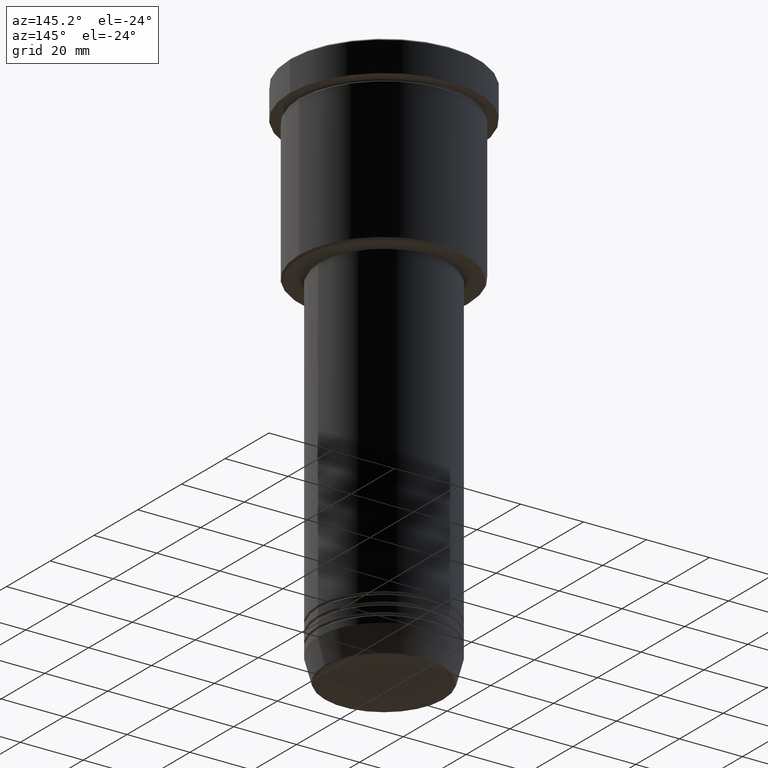
[diagram: clean part render]
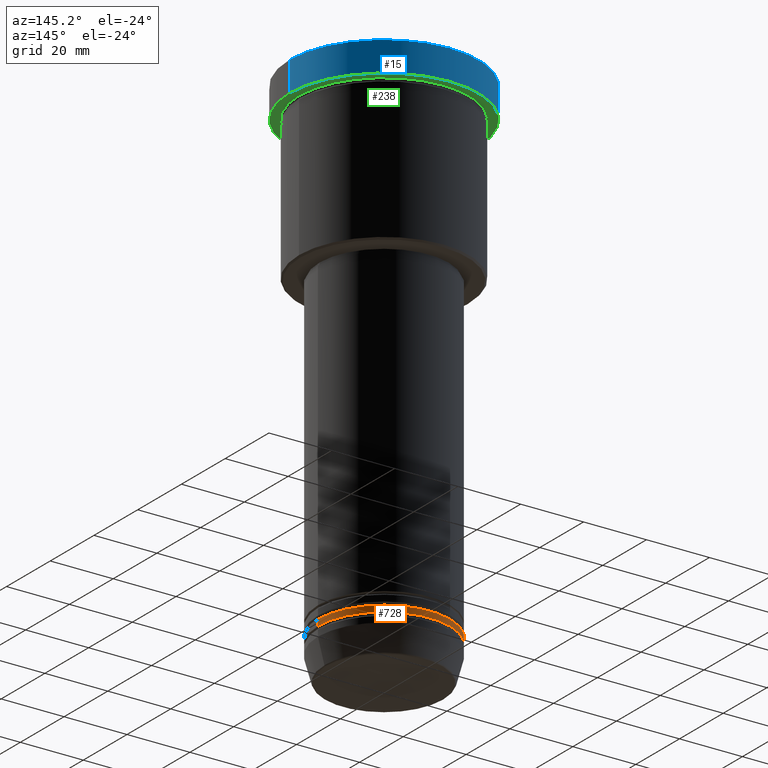
[diagram: same view with three faces highlighted in distinct colors, each labeled with its STEP entity id]
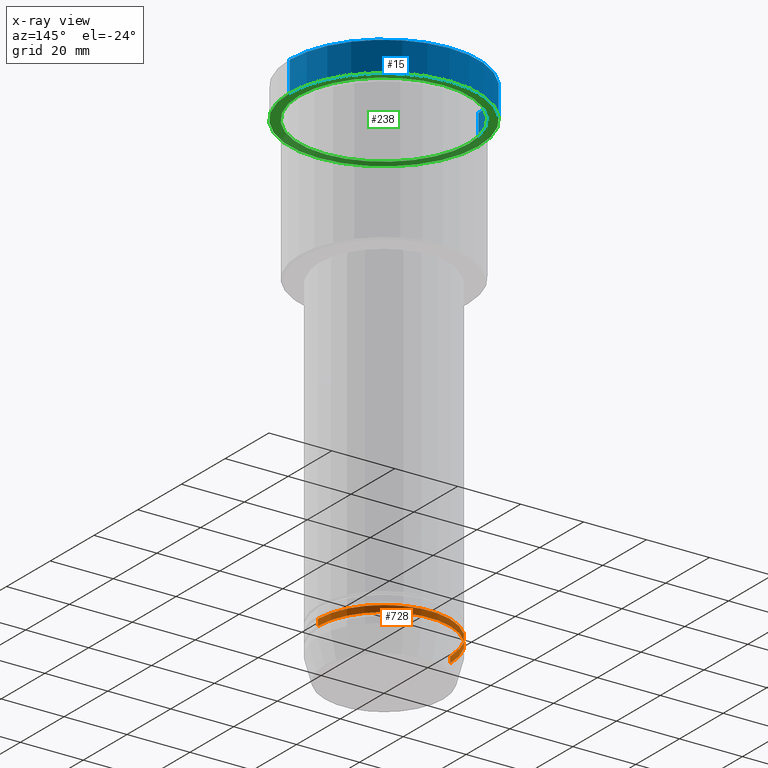
[diagram: x-ray of the same camera — body ghosted, the three highlighted faces saturated]
A machine part, auxiliary view with three faces highlighted in distinct colors.
The next image is the same camera in x-ray (body ghosted, the three faces saturated) — at least one of them is partly hidden behind the body in this view.
Their STEP definitions:

[orange] entity #728 — the highlighted cylindrical surface (partial cylindrical patch) has radius 21 mm, axis along (-0, -0, 1).
#61 = EDGE_CURVE ( 'NONE', #165, #794, #812, .T. ) ;
#91 = CARTESIAN_POINT ( 'NONE',  ( -21.00000000000000000, 2.571758278209441661E-15, -157.9999999999999716 ) ) ;
#96 = EDGE_CURVE ( 'NONE', #794, #387, #546, .T. ) ;
#141 = CARTESIAN_POINT ( 'NONE',  ( 0.000000000000000000, 0.000000000000000000, 0.000000000000000000 ) ) ;
#153 = DIRECTION ( 'NONE',  ( -0.000000000000000000, -0.000000000000000000, 1.000000000000000000 ) ) ;
#165 = VERTEX_POINT ( 'NONE', #1125 ) ;
#185 = VERTEX_POINT ( 'NONE', #948 ) ;
#259 = CARTESIAN_POINT ( 'NONE',  ( -21.00000000000000000, 2.571758278209441661E-15, 0.000000000000000000 ) ) ;
#299 = EDGE_LOOP ( 'NONE', ( #913, #898, #576, #1020 ) ) ;
#315 = CARTESIAN_POINT ( 'NONE',  ( 0.000000000000000000, 0.000000000000000000, -157.9999999999999716 ) ) ;
#348 = DIRECTION ( 'NONE',  ( 1.000000000000000000, 0.000000000000000000, 0.000000000000000000 ) ) ;
#387 = VERTEX_POINT ( 'NONE', #91 ) ;
#428 = AXIS2_PLACEMENT_3D ( 'NONE', #964, #153, #348 ) ;
#431 = DIRECTION ( 'NONE',  ( -0.000000000000000000, -0.000000000000000000, 1.000000000000000000 ) ) ;
#469 = AXIS2_PLACEMENT_3D ( 'NONE', #141, #1144, #810 ) ;
#546 = CIRCLE ( 'NONE', #699, 21.00000000000000000 ) ;
#573 = VECTOR ( 'NONE', #431, 1000.000000000000000 ) ;
#576 = ORIENTED_EDGE ( 'NONE', *, *, #96, .F. ) ;
#597 = CYLINDRICAL_SURFACE ( 'NONE', #469, 21.00000000000000000 ) ;
#625 = LINE ( 'NONE', #259, #573 ) ;
#699 = AXIS2_PLACEMENT_3D ( 'NONE', #315, #865, #955 ) ;
#728 = ADVANCED_FACE ( 'NONE', ( #785 ), #597, .T. ) ;
#783 = CIRCLE ( 'NONE', #428, 21.00000000000000000 ) ;
#785 = FACE_OUTER_BOUND ( 'NONE', #299, .T. ) ;
#789 = EDGE_CURVE ( 'NONE', #165, #185, #783, .T. ) ;
#794 = VERTEX_POINT ( 'NONE', #881 ) ;
#810 = DIRECTION ( 'NONE',  ( 1.000000000000000000, 0.000000000000000000, 0.000000000000000000 ) ) ;
#812 = LINE ( 'NONE', #1174, #1076 ) ;
#865 = DIRECTION ( 'NONE',  ( -0.000000000000000000, -0.000000000000000000, 1.000000000000000000 ) ) ;
#881 = CARTESIAN_POINT ( 'NONE',  ( 21.00000000000000000, 0.000000000000000000, -157.9999999999999716 ) ) ;
#898 = ORIENTED_EDGE ( 'NONE', *, *, #1177, .T. ) ;
#913 = ORIENTED_EDGE ( 'NONE', *, *, #789, .T. ) ;
#948 = CARTESIAN_POINT ( 'NONE',  ( -21.00000000000000000, 2.571758278209441661E-15, -159.9999999999999716 ) ) ;
#955 = DIRECTION ( 'NONE',  ( 1.000000000000000000, 0.000000000000000000, 0.000000000000000000 ) ) ;
#964 = CARTESIAN_POINT ( 'NONE',  ( 0.000000000000000000, 0.000000000000000000, -159.9999999999999716 ) ) ;
#1020 = ORIENTED_EDGE ( 'NONE', *, *, #61, .F. ) ;
#1076 = VECTOR ( 'NONE', #1083, 1000.000000000000000 ) ;
#1083 = DIRECTION ( 'NONE',  ( -0.000000000000000000, -0.000000000000000000, 1.000000000000000000 ) ) ;
#1125 = CARTESIAN_POINT ( 'NONE',  ( 21.00000000000000000, 0.000000000000000000, -159.9999999999999716 ) ) ;
#1144 = DIRECTION ( 'NONE',  ( -0.000000000000000000, -0.000000000000000000, 1.000000000000000000 ) ) ;
#1174 = CARTESIAN_POINT ( 'NONE',  ( 21.00000000000000000, 0.000000000000000000, 0.000000000000000000 ) ) ;
#1177 = EDGE_CURVE ( 'NONE', #185, #387, #625, .T. ) ;

[blue] entity #15 — the highlighted cylindrical surface (partial cylindrical patch) has radius 30 mm, axis along (-0, -0, 1).
#15 = ADVANCED_FACE ( 'NONE', ( #919 ), #730, .T. ) ;
#39 = EDGE_CURVE ( 'NONE', #502, #555, #195, .T. ) ;
#59 = ORIENTED_EDGE ( 'NONE', *, *, #198, .T. ) ;
#109 = DIRECTION ( 'NONE',  ( 1.000000000000000000, 0.000000000000000000, 0.000000000000000000 ) ) ;
#122 = DIRECTION ( 'NONE',  ( -0.000000000000000000, -0.000000000000000000, 1.000000000000000000 ) ) ;
#195 = LINE ( 'NONE', #561, #1135 ) ;
#198 = EDGE_CURVE ( 'NONE', #436, #502, #850, .T. ) ;
#360 = VERTEX_POINT ( 'NONE', #828 ) ;
#361 = CARTESIAN_POINT ( 'NONE',  ( 0.000000000000000000, 0.000000000000000000, -0.5000000000000350830 ) ) ;
#436 = VERTEX_POINT ( 'NONE', #1088 ) ;
#466 = DIRECTION ( 'NONE',  ( -0.000000000000000000, -0.000000000000000000, 1.000000000000000000 ) ) ;
#495 = CARTESIAN_POINT ( 'NONE',  ( 0.000000000000000000, 0.000000000000000000, -9.999999999999992895 ) ) ;
#502 = VERTEX_POINT ( 'NONE', #1082 ) ;
#535 = ORIENTED_EDGE ( 'NONE', *, *, #39, .T. ) ;
#543 = AXIS2_PLACEMENT_3D ( 'NONE', #495, #586, #660 ) ;
#555 = VERTEX_POINT ( 'NONE', #670 ) ;
#561 = CARTESIAN_POINT ( 'NONE',  ( -30.00000000000000000, 3.673940397442059178E-15, 0.000000000000000000 ) ) ;
#572 = DIRECTION ( 'NONE',  ( 0.000000000000000000, 0.000000000000000000, -1.000000000000000000 ) ) ;
#586 = DIRECTION ( 'NONE',  ( -0.000000000000000000, -0.000000000000000000, 1.000000000000000000 ) ) ;
#642 = CIRCLE ( 'NONE', #701, 30.00000000000000000 ) ;
#653 = DIRECTION ( 'NONE',  ( -0.000000000000000000, -0.000000000000000000, 1.000000000000000000 ) ) ;
#660 = DIRECTION ( 'NONE',  ( 1.000000000000000000, 0.000000000000000000, 0.000000000000000000 ) ) ;
#670 = CARTESIAN_POINT ( 'NONE',  ( -30.00000000000000000, 3.673940397442059178E-15, -0.5000000000000350830 ) ) ;
#690 = ORIENTED_EDGE ( 'NONE', *, *, #985, .F. ) ;
#701 = AXIS2_PLACEMENT_3D ( 'NONE', #361, #572, #109 ) ;
#730 = CYLINDRICAL_SURFACE ( 'NONE', #1095, 30.00000000000000000 ) ;
#745 = ORIENTED_EDGE ( 'NONE', *, *, #930, .T. ) ;
#772 = CARTESIAN_POINT ( 'NONE',  ( 30.00000000000000000, 0.000000000000000000, 0.000000000000000000 ) ) ;
#823 = DIRECTION ( 'NONE',  ( 1.000000000000000000, 0.000000000000000000, 0.000000000000000000 ) ) ;
#828 = CARTESIAN_POINT ( 'NONE',  ( 30.00000000000000000, 0.000000000000000000, -0.5000000000000350830 ) ) ;
#831 = EDGE_LOOP ( 'NONE', ( #59, #535, #745, #690 ) ) ;
#850 = CIRCLE ( 'NONE', #543, 30.00000000000000000 ) ;
#919 = FACE_OUTER_BOUND ( 'NONE', #831, .T. ) ;
#930 = EDGE_CURVE ( 'NONE', #555, #360, #642, .T. ) ;
#957 = LINE ( 'NONE', #772, #1043 ) ;
#985 = EDGE_CURVE ( 'NONE', #436, #360, #957, .T. ) ;
#1009 = CARTESIAN_POINT ( 'NONE',  ( 0.000000000000000000, 0.000000000000000000, 0.000000000000000000 ) ) ;
#1043 = VECTOR ( 'NONE', #122, 1000.000000000000000 ) ;
#1082 = CARTESIAN_POINT ( 'NONE',  ( -30.00000000000000000, 3.673940397442059178E-15, -9.999999999999992895 ) ) ;
#1088 = CARTESIAN_POINT ( 'NONE',  ( 30.00000000000000000, 0.000000000000000000, -9.999999999999992895 ) ) ;
#1095 = AXIS2_PLACEMENT_3D ( 'NONE', #1009, #466, #823 ) ;
#1135 = VECTOR ( 'NONE', #653, 1000.000000000000000 ) ;

[green] entity #238 — the highlighted planar face has unit normal (0, 0, -1).
#45 = EDGE_CURVE ( 'NONE', #502, #436, #261, .T. ) ;
#66 = CIRCLE ( 'NONE', #161, 27.00000000000000355 ) ;
#75 = CARTESIAN_POINT ( 'NONE',  ( 0.000000000000000000, 30.00000000000000000, -9.999999999999992895 ) ) ;
#78 = DIRECTION ( 'NONE',  ( 1.000000000000000000, 0.000000000000000000, 0.000000000000000000 ) ) ;
#161 = AXIS2_PLACEMENT_3D ( 'NONE', #806, #603, #1054 ) ;
#168 = CARTESIAN_POINT ( 'NONE',  ( 27.00000000000000355, 3.306546357697854128E-15, -9.999999999999992895 ) ) ;
#198 = EDGE_CURVE ( 'NONE', #436, #502, #850, .T. ) ;
#200 = DIRECTION ( 'NONE',  ( -0.000000000000000000, -0.000000000000000000, 1.000000000000000000 ) ) ;
#238 = ADVANCED_FACE ( 'NONE', ( #696, #895 ), #1168, .T. ) ;
#256 = DIRECTION ( 'NONE',  ( 0.000000000000000000, 0.000000000000000000, -1.000000000000000000 ) ) ;
#261 = CIRCLE ( 'NONE', #408, 30.00000000000000000 ) ;
#273 = EDGE_CURVE ( 'NONE', #358, #276, #66, .T. ) ;
#276 = VERTEX_POINT ( 'NONE', #507 ) ;
#311 = EDGE_LOOP ( 'NONE', ( #347, #936 ) ) ;
#347 = ORIENTED_EDGE ( 'NONE', *, *, #392, .T. ) ;
#358 = VERTEX_POINT ( 'NONE', #168 ) ;
#364 = ORIENTED_EDGE ( 'NONE', *, *, #45, .F. ) ;
#392 = EDGE_CURVE ( 'NONE', #276, #358, #510, .T. ) ;
#408 = AXIS2_PLACEMENT_3D ( 'NONE', #1019, #200, #78 ) ;
#436 = VERTEX_POINT ( 'NONE', #1088 ) ;
#495 = CARTESIAN_POINT ( 'NONE',  ( 0.000000000000000000, 0.000000000000000000, -9.999999999999992895 ) ) ;
#502 = VERTEX_POINT ( 'NONE', #1082 ) ;
#507 = CARTESIAN_POINT ( 'NONE',  ( -27.00000000000000355, 0.000000000000000000, -9.999999999999992895 ) ) ;
#510 = CIRCLE ( 'NONE', #779, 27.00000000000000355 ) ;
#514 = DIRECTION ( 'NONE',  ( -1.000000000000000000, 0.000000000000000000, -0.000000000000000000 ) ) ;
#543 = AXIS2_PLACEMENT_3D ( 'NONE', #495, #586, #660 ) ;
#554 = DIRECTION ( 'NONE',  ( -1.000000000000000000, 0.000000000000000000, 0.000000000000000000 ) ) ;
#586 = DIRECTION ( 'NONE',  ( -0.000000000000000000, -0.000000000000000000, 1.000000000000000000 ) ) ;
#603 = DIRECTION ( 'NONE',  ( -0.000000000000000000, -0.000000000000000000, 1.000000000000000000 ) ) ;
#660 = DIRECTION ( 'NONE',  ( 1.000000000000000000, 0.000000000000000000, 0.000000000000000000 ) ) ;
#696 = FACE_BOUND ( 'NONE', #311, .T. ) ;
#729 = CARTESIAN_POINT ( 'NONE',  ( 0.000000000000000000, 0.000000000000000000, -9.999999999999992895 ) ) ;
#779 = AXIS2_PLACEMENT_3D ( 'NONE', #729, #998, #554 ) ;
#806 = CARTESIAN_POINT ( 'NONE',  ( 0.000000000000000000, 0.000000000000000000, -9.999999999999992895 ) ) ;
#850 = CIRCLE ( 'NONE', #543, 30.00000000000000000 ) ;
#895 = FACE_OUTER_BOUND ( 'NONE', #1180, .T. ) ;
#936 = ORIENTED_EDGE ( 'NONE', *, *, #273, .T. ) ;
#943 = AXIS2_PLACEMENT_3D ( 'NONE', #75, #256, #514 ) ;
#998 = DIRECTION ( 'NONE',  ( -0.000000000000000000, -0.000000000000000000, 1.000000000000000000 ) ) ;
#1019 = CARTESIAN_POINT ( 'NONE',  ( 0.000000000000000000, 0.000000000000000000, -9.999999999999992895 ) ) ;
#1054 = DIRECTION ( 'NONE',  ( -1.000000000000000000, 0.000000000000000000, 0.000000000000000000 ) ) ;
#1070 = ORIENTED_EDGE ( 'NONE', *, *, #198, .F. ) ;
#1082 = CARTESIAN_POINT ( 'NONE',  ( -30.00000000000000000, 3.673940397442059178E-15, -9.999999999999992895 ) ) ;
#1088 = CARTESIAN_POINT ( 'NONE',  ( 30.00000000000000000, 0.000000000000000000, -9.999999999999992895 ) ) ;
#1168 = PLANE ( 'NONE',  #943 ) ;
#1180 = EDGE_LOOP ( 'NONE', ( #1070, #364 ) ) ;